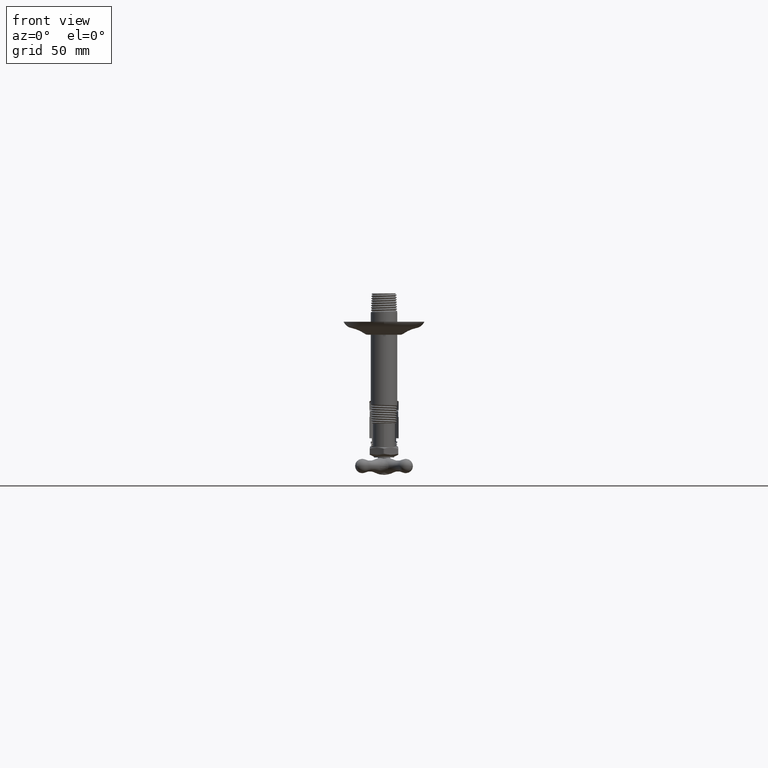
[diagram: clean part render]
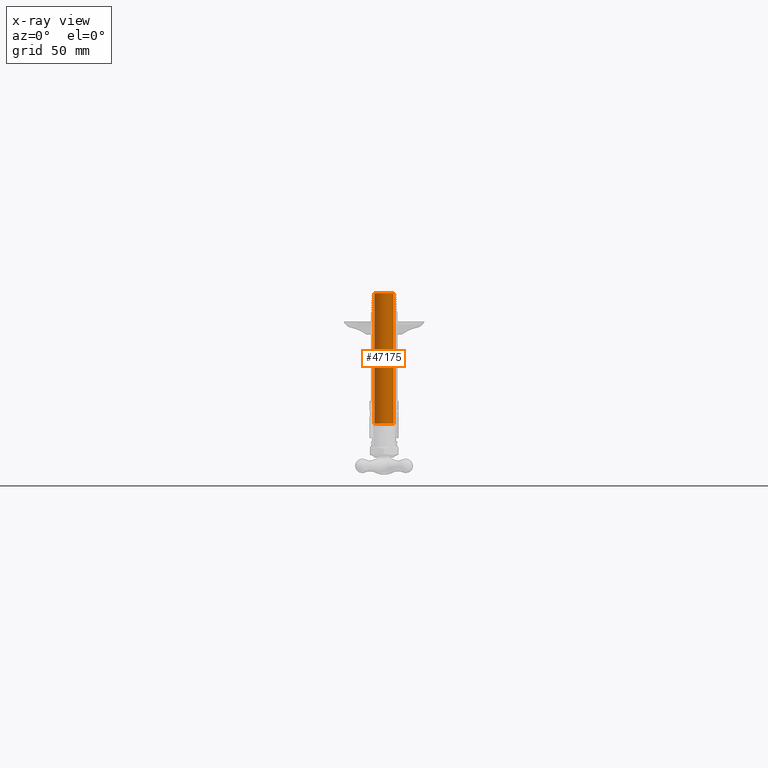
[diagram: x-ray — body ghosted, one internal face saturated and labeled with its STEP entity id]
A machine part, front view, then the same camera in x-ray: the body is ghosted and one INTERNAL B-rep face — a face not visible from any outside direction — is saturated and labeled: STEP entity #47175.
In plain terms, the highlighted cylindrical surface (edge-blend (fillet) strip) has radius 7.5438 mm, axis along (0, 0, 1).
Its self-contained STEP definition (entity closure, byte-faithful):
#47124=CARTESIAN_POINT('',(0.E0,0.E0,1.25E-1));
#47125=DIRECTION('',(0.E0,0.E0,-1.E0));
#47126=DIRECTION('',(1.E0,0.E0,0.E0));
#47127=AXIS2_PLACEMENT_3D('',#47124,#47125,#47126);
#47129=CARTESIAN_POINT('',(0.E0,0.E0,4.125E0));
#47130=DIRECTION('',(0.E0,0.E0,1.E0));
#47131=DIRECTION('',(-1.E0,-2.063790179004E-13,0.E0));
#47132=AXIS2_PLACEMENT_3D('',#47129,#47130,#47131);
#47139=DIRECTION('',(0.E0,0.E0,1.E0));
#47140=VECTOR('',#47139,4.E0);
#47141=CARTESIAN_POINT('',(2.97E-1,0.E0,1.25E-1));
#47142=LINE('',#47141,#47140);
#47148=DIRECTION('',(0.E0,0.E0,-1.E0));
#47149=VECTOR('',#47148,4.E0);
#47150=CARTESIAN_POINT('',(-2.97E-1,-6.129456831641E-14,4.125E0));
#47151=LINE('',#47150,#47149);
#47152=CARTESIAN_POINT('',(2.97E-1,0.E0,1.25E-1));
#47153=CARTESIAN_POINT('',(-2.97E-1,-6.129456831641E-14,1.25E-1));
#47154=VERTEX_POINT('',#47152);
#47155=VERTEX_POINT('',#47153);
#47156=CARTESIAN_POINT('',(-2.97E-1,-6.129456831641E-14,4.125E0));
#47157=CARTESIAN_POINT('',(2.97E-1,0.E0,4.125E0));
#47158=VERTEX_POINT('',#47156);
#47159=VERTEX_POINT('',#47157);
#47160=CARTESIAN_POINT('',(0.E0,0.E0,4.5E-2));
#47161=DIRECTION('',(0.E0,0.E0,1.E0));
#47162=DIRECTION('',(1.E0,0.E0,0.E0));
#47163=AXIS2_PLACEMENT_3D('',#47160,#47161,#47162);
#47164=CYLINDRICAL_SURFACE('',#47163,2.97E-1);
#47166=ORIENTED_EDGE('',*,*,#47165,.T.);
#47168=ORIENTED_EDGE('',*,*,#47167,.F.);
#47170=ORIENTED_EDGE('',*,*,#47169,.T.);
#47172=ORIENTED_EDGE('',*,*,#47171,.F.);
#47173=EDGE_LOOP('',(#47166,#47168,#47170,#47172));
#47174=FACE_OUTER_BOUND('',#47173,.F.);
#47175=ADVANCED_FACE('',(#47174),#47164,.T.);
#47128=CIRCLE('',#47127,2.97E-1);
#47133=CIRCLE('',#47132,2.97E-1);
#47165=EDGE_CURVE('',#47154,#47155,#47128,.T.);
#47167=EDGE_CURVE('',#47158,#47155,#47151,.T.);
#47169=EDGE_CURVE('',#47158,#47159,#47133,.T.);
#47171=EDGE_CURVE('',#47154,#47159,#47142,.T.);